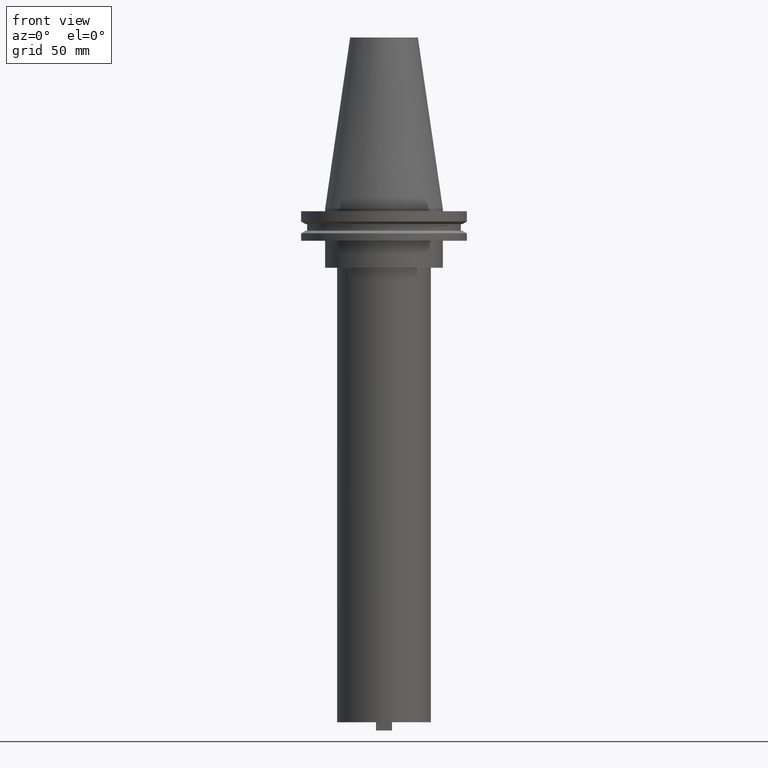
[diagram: clean part render]
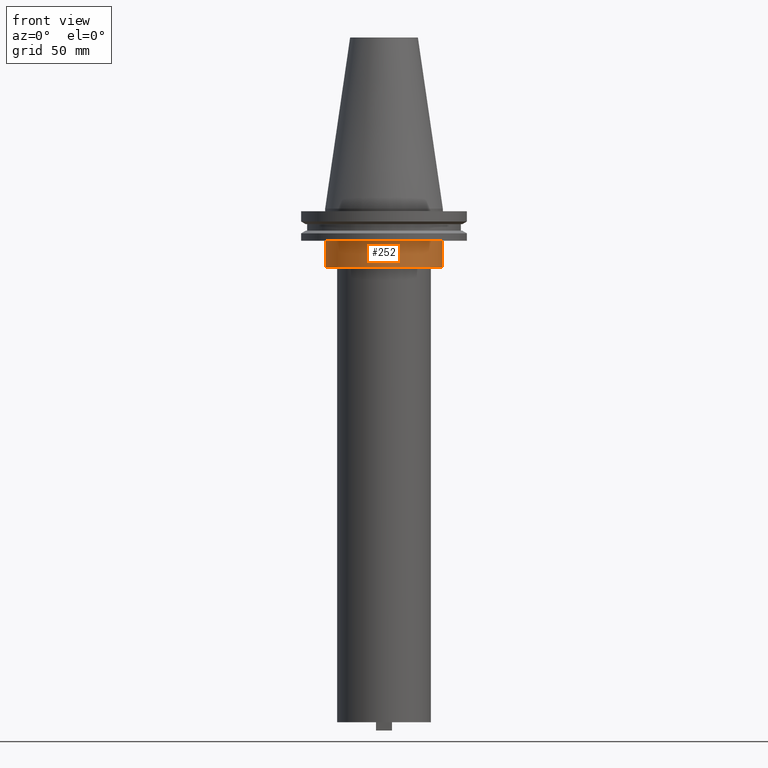
[diagram: same view with one face highlighted and labeled with its STEP entity id]
A machine part, front view. The second image highlights one B-rep face of the part: STEP entity #252.
In plain terms, the highlighted cylindrical surface (partial cylindrical patch) has radius 34.925 mm, axis along (-0, -0, 1).
Its self-contained STEP definition (entity closure, byte-faithful):
#17 = AXIS2_PLACEMENT_3D ( 'NONE', #1034, #47, #281 ) ;
#39 = FACE_OUTER_BOUND ( 'NONE', #631, .T. ) ;
#42 = LINE ( 'NONE', #802, #173 ) ;
#47 = DIRECTION ( 'NONE',  ( -0.000000000000000000, -0.000000000000000000, 1.000000000000000000 ) ) ;
#125 = VERTEX_POINT ( 'NONE', #175 ) ;
#134 = ORIENTED_EDGE ( 'NONE', *, *, #552, .F. ) ;
#173 = VECTOR ( 'NONE', #1042, 1000.000000000000000 ) ;
#175 = CARTESIAN_POINT ( 'NONE',  ( 34.92499999999999716, 0.000000000000000000, -35.04999999999999716 ) ) ;
#203 = VECTOR ( 'NONE', #377, 1000.000000000000000 ) ;
#213 = EDGE_CURVE ( 'NONE', #923, #1003, #970, .T. ) ;
#216 = CYLINDRICAL_SURFACE ( 'NONE', #17, 34.92499999999999716 ) ;
#252 = ADVANCED_FACE ( 'NONE', ( #39 ), #216, .T. ) ;
#281 = DIRECTION ( 'NONE',  ( 1.000000000000000000, 0.000000000000000000, 0.000000000000000000 ) ) ;
#328 = VERTEX_POINT ( 'NONE', #961 ) ;
#372 = DIRECTION ( 'NONE',  ( -0.000000000000000000, -0.000000000000000000, 1.000000000000000000 ) ) ;
#377 = DIRECTION ( 'NONE',  ( -0.000000000000000000, -0.000000000000000000, 1.000000000000000000 ) ) ;
#430 = EDGE_CURVE ( 'NONE', #923, #125, #615, .T. ) ;
#445 = CARTESIAN_POINT ( 'NONE',  ( -34.92499999999999716, 4.277078946022130887E-15, 101.5999999999999943 ) ) ;
#552 = EDGE_CURVE ( 'NONE', #1003, #328, #929, .T. ) ;
#563 = EDGE_CURVE ( 'NONE', #125, #328, #42, .T. ) ;
#575 = DIRECTION ( 'NONE',  ( -0.000000000000000000, -0.000000000000000000, 1.000000000000000000 ) ) ;
#615 = CIRCLE ( 'NONE', #874, 34.92499999999999716 ) ;
#624 = CARTESIAN_POINT ( 'NONE',  ( 0.000000000000000000, 0.000000000000000000, -19.04999999999999716 ) ) ;
#631 = EDGE_LOOP ( 'NONE', ( #1027, #954, #888, #134 ) ) ;
#728 = CARTESIAN_POINT ( 'NONE',  ( 0.000000000000000000, 0.000000000000000000, -35.04999999999999716 ) ) ;
#741 = DIRECTION ( 'NONE',  ( 1.000000000000000000, 0.000000000000000000, 0.000000000000000000 ) ) ;
#802 = CARTESIAN_POINT ( 'NONE',  ( 34.92499999999999716, 0.000000000000000000, 101.5999999999999943 ) ) ;
#874 = AXIS2_PLACEMENT_3D ( 'NONE', #728, #575, #741 ) ;
#884 = DIRECTION ( 'NONE',  ( 1.000000000000000000, 0.000000000000000000, 0.000000000000000000 ) ) ;
#888 = ORIENTED_EDGE ( 'NONE', *, *, #563, .T. ) ;
#923 = VERTEX_POINT ( 'NONE', #1022 ) ;
#929 = CIRCLE ( 'NONE', #964, 34.92499999999999716 ) ;
#953 = CARTESIAN_POINT ( 'NONE',  ( -34.92499999999999716, 4.277078946022130887E-15, -19.04999999999999716 ) ) ;
#954 = ORIENTED_EDGE ( 'NONE', *, *, #430, .T. ) ;
#961 = CARTESIAN_POINT ( 'NONE',  ( 34.92499999999999716, 0.000000000000000000, -19.04999999999999716 ) ) ;
#964 = AXIS2_PLACEMENT_3D ( 'NONE', #624, #372, #884 ) ;
#970 = LINE ( 'NONE', #445, #203 ) ;
#1003 = VERTEX_POINT ( 'NONE', #953 ) ;
#1022 = CARTESIAN_POINT ( 'NONE',  ( -34.92499999999999716, 4.277078946022130887E-15, -35.04999999999999716 ) ) ;
#1027 = ORIENTED_EDGE ( 'NONE', *, *, #213, .F. ) ;
#1034 = CARTESIAN_POINT ( 'NONE',  ( 0.000000000000000000, 0.000000000000000000, 101.5999999999999943 ) ) ;
#1042 = DIRECTION ( 'NONE',  ( -0.000000000000000000, -0.000000000000000000, 1.000000000000000000 ) ) ;